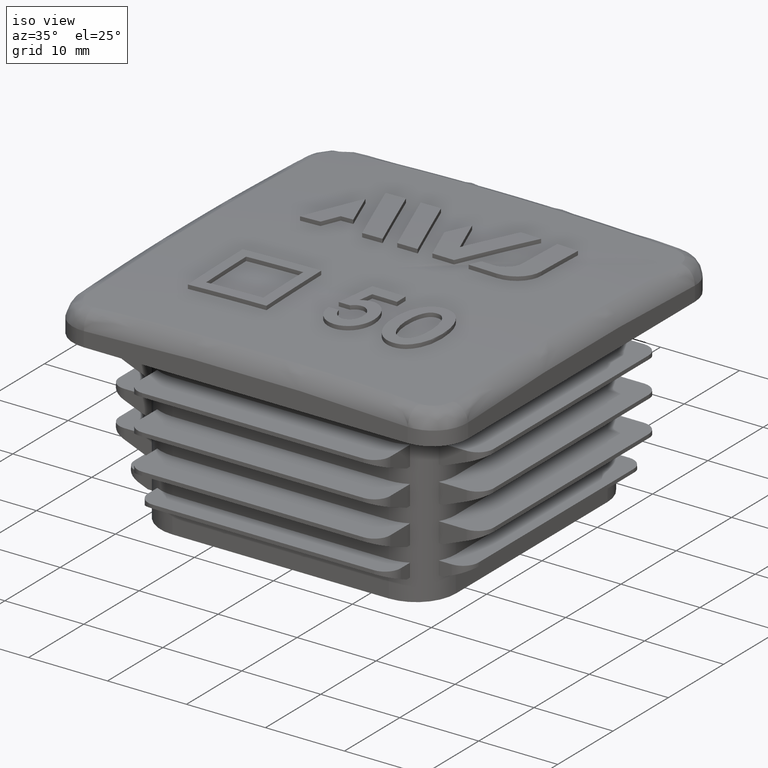
[diagram: clean part render]
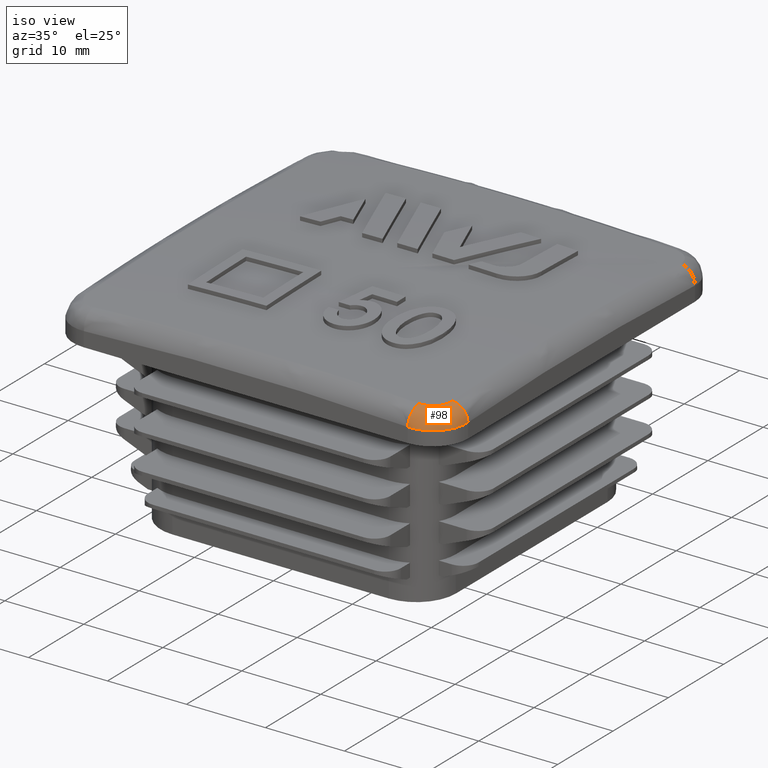
[diagram: same view with one face highlighted and labeled with its STEP entity id]
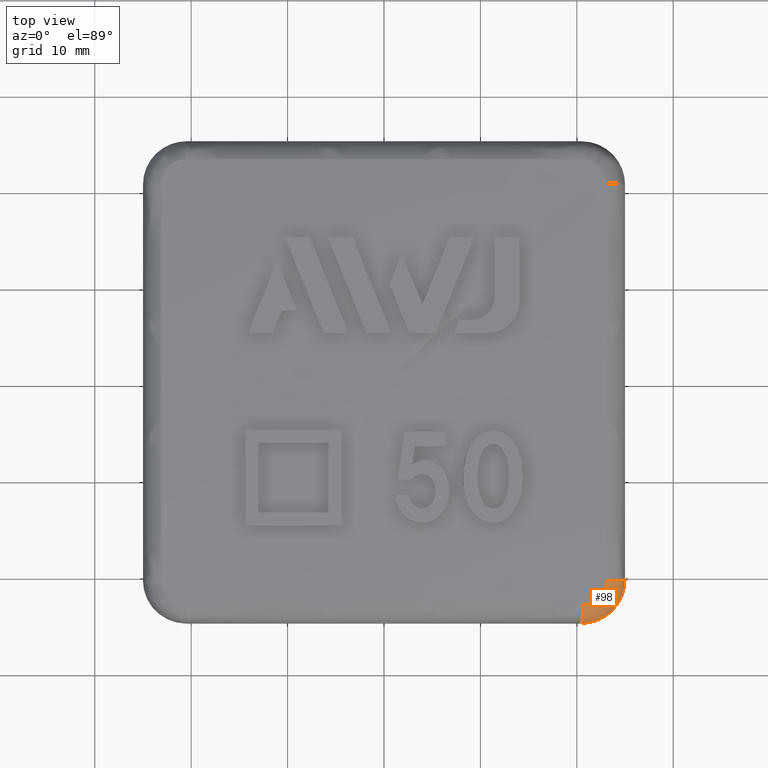
[diagram: same view with one face highlighted and labeled with its STEP entity id]
A machine part, iso view. The second image highlights one B-rep face of the part: STEP entity #98.
A second angle (top view) of the same face is appended — the face is thin or edge-on in the first view.
In plain terms, the highlighted face is a freeform B-spline surface patch.
Its self-contained STEP definition (entity closure, byte-faithful):
#98 = ADVANCED_FACE( '', ( #405 ), #406, .T. );
#405 = FACE_OUTER_BOUND( '', #1798, .T. );
#406 = ( B_SPLINE_SURFACE( 3, 2, ( ( #1800, #1801, #1802 ), ( #1803, #1804, #1805 ), ( #1806, #1807, #1808 ), ( #1809, #1810, #1811 ), ( #1812, #1813, #1814 ), ( #1815, #1816, #1817 ), ( #1818, #1819, #1820 ), ( #1821, #1822, #1823 ), ( #1824, #1825, #1826 ), ( #1827, #1828, #1829 ), ( #1830, #1831, #1832 ), ( #1833, #1834, #1835 ), ( #1836, #1837, #1838 ), ( #1839, #1840, #1841 ), ( #1842, #1843, #1844 ), ( #1845, #1846, #1847 ), ( #1848, #1849, #1850 ), ( #1851, #1852, #1853 ), ( #1854, #1855, #1856 ), ( #1857, #1858, #1859 ), ( #1860, #1861, #1862 ), ( #1863, #1864, #1865 ), ( #1866, #1867, #1868 ), ( #1869, #1870, #1871 ), ( #1872, #1873, #1874 ), ( #1875, #1876, #1877 ), ( #1878, #1879, #1880 ), ( #1881, #1882, #1883 ), ( #1884, #1885, #1886 ), ( #1887, #1888, #1889 ), ( #1890, #1891, #1892 ), ( #1893, #1894, #1895 ), ( #1896, #1897, #1898 ), ( #1899, #1900, #1901 ), ( #1902, #1903, #1904 ), ( #1905, #1906, #1907 ), ( #1908, #1909, #1910 ), ( #1911, #1912, #1913 ), ( #1914, #1915, #1916 ), ( #1917, #1918, #1919 ), ( #1920, #1921, #1922 ), ( #1923, #1924, #1925 ), ( #1926, #1927, #1928 ), ( #1929, #1930, #1931 ), ( #1932, #1933, #1934 ), ( #1935, #1936, #1937 ), ( #1938, #1939, #1940 ), ( #1941, #1942, #1943 ), ( #1944, #1945, #1946 ), ( #1947, #1948, #1949 ), ( #1950, #1951, #1952 ), ( #1953, #1954, #1955 ), ( #1956, #1957, #1958 ), ( #1959, #1960, #1961 ) ), .UNSPECIFIED., .F., .F., .F. )B_SPLINE_SURFACE_WITH_KNOTS( ( 4, 2, 2, 2, 2, 2, 2, 2, 2, 2, 2, 2, 2, 2, 2, 2, 2, 2, 2, 2, 2, 2, 2, 2, 2, 2, 4 ), ( 3, 3 ), ( -1.08420217248550E-019, 0.000244203709152109, 0.000488407418304219, 0.000732611127456328, 0.000793662054744356, 0.000824187518388369, 0.000854712982032383, 0.000976814836608438, 0.00122101854576055, 0.00146522225491266, 0.00158732410948871, 0.00164837503677674, 0.00170942596406477, 0.00195362967321688, 0.00219783338236899, 0.00244203709152109, 0.00250308801880912, 0.00253361348245314, 0.00256413894609715, 0.00268624080067320, 0.00293044450982531, 0.00317464821897742, 0.00329675007355348, 0.00335780100084150, 0.00341885192812953, 0.00366305563728164, 0.00390725934643375 ), ( 0.000000000000000, 1.00000000000000 ), .UNSPECIFIED. )RATIONAL_B_SPLINE_SURFACE( ( ( 1.00000000000000, 0.726860817058026, 1.00000000000000 ), ( 1.00000000000000, 0.727434369461533, 1.00000000000000 ), ( 1.00000000000000, 0.727974316013789, 1.00000000000000 ), ( 1.00000000000000, 0.728989454795228, 1.00000000000000 ), ( 1.00000000000000, 0.729464672655636, 1.00000000000000 ), ( 1.00000000000000, 0.730351103534360, 1.00000000000000 ), ( 1.00000000000000, 0.730762318758557, 1.00000000000000 ), ( 1.00000000000000, 0.731235596081552, 1.00000000000000 ), ( 1.00000000000000, 0.731328209703269, 1.00000000000000 ), ( 1.00000000000000, 0.731464038735480, 1.00000000000000 ), ( 1.00000000000000, 0.731508799785910, 1.00000000000000 ), ( 1.00000000000000, 0.731597285726913, 1.00000000000000 ), ( 1.00000000000000, 0.731641031309164, 1.00000000000000 ), ( 1.00000000000000, 0.731856583282710, 1.00000000000000 ), ( 1.00000000000000, 0.732019273401587, 1.00000000000000 ), ( 1.00000000000000, 0.732478726230433, 1.00000000000000 ), ( 1.00000000000000, 0.732746940931501, 1.00000000000000 ), ( 1.00000000000000, 0.733208808602876, 1.00000000000000 ), ( 1.00000000000000, 0.733402459754828, 1.00000000000000 ), ( 1.00000000000000, 0.733636555834625, 1.00000000000000 ), ( 1.00000000000000, 0.733705174024906, 1.00000000000000 ), ( 1.00000000000000, 0.733793762966022, 1.00000000000000 ), ( 1.00000000000000, 0.733820901744717, 1.00000000000000 ), ( 1.00000000000000, 0.733870346872464, 1.00000000000000 ), ( 1.00000000000000, 0.733892667460680, 1.00000000000000 ), ( 1.00000000000000, 0.733991562483478, 1.00000000000000 ), ( 1.00000000000000, 0.734030632817924, 1.00000000000000 ), ( 1.00000000000000, 0.734031210805133, 1.00000000000000 ), ( 1.00000000000000, 0.733992711843989, 1.00000000000000 ), ( 1.00000000000000, 0.733838304179725, 1.00000000000000 ), ( 1.00000000000000, 0.733722400147664, 1.00000000000000 ), ( 1.00000000000000, 0.733527789903732, 1.00000000000000 ), ( 1.00000000000000, 0.733486375372828, 1.00000000000000 ), ( 1.00000000000000, 0.733420470851471, 1.00000000000000 ), ( 1.00000000000000, 0.733397863905281, 1.00000000000000 ), ( 1.00000000000000, 0.733351512675516, 1.00000000000000 ), ( 1.00000000000000, 0.733327754387480, 1.00000000000000 ), ( 1.00000000000000, 0.733206065813756, 1.00000000000000 ), ( 1.00000000000000, 0.733099449844072, 1.00000000000000 ), ( 1.00000000000000, 0.732752287115492, 1.00000000000000 ), ( 1.00000000000000, 0.732484491539147, 1.00000000000000 ), ( 1.00000000000000, 0.731877081573989, 1.00000000000000 ), ( 1.00000000000000, 0.731537467254665, 1.00000000000000 ), ( 1.00000000000000, 0.730973251363804, 1.00000000000000 ), ( 1.00000000000000, 0.730776030486469, 1.00000000000000 ), ( 1.00000000000000, 0.730466202330993, 1.00000000000000 ), ( 1.00000000000000, 0.730360541906995, 1.00000000000000 ), ( 1.00000000000000, 0.730144707826296, 1.00000000000000 ), ( 1.00000000000000, 0.730034806917008, 1.00000000000000 ), ( 1.00000000000000, 0.729475443551060, 1.00000000000000 ), ( 1.00000000000000, 0.728996477297413, 1.00000000000000 ), ( 1.00000000000000, 0.727975958394807, 1.00000000000000 ), ( 1.00000000000000, 0.727434377511086, 1.00000000000000 ), ( 1.00000000000000, 0.726860817058027, 1.00000000000000 ) ) )BOUNDED_SURFACE(  )REPRESENTATION_ITEM( '' )GEOMETRIC_REPRESENTATION_ITEM(  )SURFACE(  ) );
#1798 = EDGE_LOOP( '', ( #3609, #3610, #3611, #3612 ) );
#1800 = CARTESIAN_POINT( '', ( 20.5000000000000, -25.0000000000000, 23.8526878253239 ) );
#1801 = CARTESIAN_POINT( '', ( 20.5955759626719, -25.0000000000000, 25.7399978061845 ) );
#1802 = CARTESIAN_POINT( '', ( 20.6009906558560, -23.1133065894970, 25.8469201348120 ) );
#1803 = CARTESIAN_POINT( '', ( 20.6484362324421, -25.0000000000000, 23.8485117064662 ) );
#1804 = CARTESIAN_POINT( '', ( 20.7407120778615, -24.9968473441277, 25.7328232002181 ) );
#1805 = CARTESIAN_POINT( '', ( 20.6838650787808, -23.1133106322547, 25.8427230308155 ) );
#1806 = CARTESIAN_POINT( '', ( 20.7956472244048, -24.9926743869857, 23.8445758698632 ) );
#1807 = CARTESIAN_POINT( '', ( 20.8843613139378, -24.9867218232492, 25.7260754389628 ) );
#1808 = CARTESIAN_POINT( '', ( 20.7660552806593, -23.1092245793063, 25.8387674157601 ) );
#1809 = CARTESIAN_POINT( '', ( 21.0876953065141, -24.9638710392973, 23.8371687546948 ) );
#1810 = CARTESIAN_POINT( '', ( 21.1688793442522, -24.9530673388047, 25.7133968645684 ) );
#1811 = CARTESIAN_POINT( '', ( 20.9291099679935, -23.0931509440975, 25.8313230788994 ) );
#1812 = CARTESIAN_POINT( '', ( 21.2325333424301, -24.9423919163660, 23.8336974881807 ) );
#1813 = CARTESIAN_POINT( '', ( 21.3097488878262, -24.9295368708019, 25.7074660886571 ) );
#1814 = CARTESIAN_POINT( '', ( 21.0099749885490, -23.0811625873893, 25.8278343688378 ) );
#1815 = CARTESIAN_POINT( '', ( 21.5198505240195, -24.8853569917423, 23.8272171286298 ) );
#1816 = CARTESIAN_POINT( '', ( 21.5888325781370, -24.8691905599888, 25.6964095577004 ) );
#1817 = CARTESIAN_POINT( '', ( 21.1703877101743, -23.0493264794255, 25.8213214446683 ) );
#1818 = CARTESIAN_POINT( '', ( 21.6623297700420, -24.8498017907573, 23.8242080155403 ) );
#1819 = CARTESIAN_POINT( '', ( 21.7270466337165, -24.8323752277192, 25.6912837808273 ) );
#1820 = CARTESIAN_POINT( '', ( 21.2499354676399, -23.0294790646756, 25.8182972103992 ) );
#1821 = CARTESIAN_POINT( '', ( 21.8389199768344, -24.7963536781449, 23.8207423440705 ) );
#1822 = CARTESIAN_POINT( '', ( 21.8981884764601, -24.7778747490842, 25.6853871714815 ) );
#1823 = CARTESIAN_POINT( '', ( 21.3485275463321, -22.9996425595425, 25.8148141235038 ) );
#1824 = CARTESIAN_POINT( '', ( 21.8741624012425, -24.7852128104024, 23.8200640298424 ) );
#1825 = CARTESIAN_POINT( '', ( 21.9323353910571, -24.7665495592878, 25.6842334405462 ) );
#1826 = CARTESIAN_POINT( '', ( 21.3682037339914, -22.9934233169792, 25.8141324006583 ) );
#1827 = CARTESIAN_POINT( '', ( 21.9269114235176, -24.7678175421744, 23.8190690234634 ) );
#1828 = CARTESIAN_POINT( '', ( 21.9834337098056, -24.7489175977928, 25.6825415577512 ) );
#1829 = CARTESIAN_POINT( '', ( 21.3976540087336, -22.9837125755365, 25.8131323942495 ) );
#1830 = CARTESIAN_POINT( '', ( 21.9444753260375, -24.7619051109292, 23.8187410992607 ) );
#1831 = CARTESIAN_POINT( '', ( 22.0004461383468, -24.7429329015006, 25.6819840498534 ) );
#1832 = CARTESIAN_POINT( '', ( 21.4074600979641, -22.9804120081446, 25.8128028221848 ) );
#1833 = CARTESIAN_POINT( '', ( 21.9795646943911, -24.7498508747022, 23.8180927849480 ) );
#1834 = CARTESIAN_POINT( '', ( 22.0344303013756, -24.7307474947597, 25.6808820047515 ) );
#1835 = CARTESIAN_POINT( '', ( 21.4270508111772, -22.9736828072266, 25.8121512500130 ) );
#1836 = CARTESIAN_POINT( '', ( 21.9970987574589, -24.7437058598887, 23.8177722431739 ) );
#1837 = CARTESIAN_POINT( '', ( 22.0514103588985, -24.7245435571757, 25.6803372099147 ) );
#1838 = CARTESIAN_POINT( '', ( 21.4368402352413, -22.9702523823272, 25.8118290974760 ) );
#1839 = CARTESIAN_POINT( '', ( 22.0844391310148, -24.7124883949431, 23.8161926706932 ) );
#1840 = CARTESIAN_POINT( '', ( 22.1359830318199, -24.6930657477157, 25.6776529421346 ) );
#1841 = CARTESIAN_POINT( '', ( 21.4856031326895, -22.9528253371266, 25.8102415874417 ) );
#1842 = CARTESIAN_POINT( '', ( 22.1534139552822, -24.6858875088964, 23.8150000359084 ) );
#1843 = CARTESIAN_POINT( '', ( 22.2027462177390, -24.6663655339828, 25.6756274604727 ) );
#1844 = CARTESIAN_POINT( '', ( 21.5241123384744, -22.9379753342459, 25.8090429595224 ) );
#1845 = CARTESIAN_POINT( '', ( 22.3577000281210, -24.6013020352257, 23.8116309483235 ) );
#1846 = CARTESIAN_POINT( '', ( 22.4004270700699, -24.5818022356436, 25.6699084034433 ) );
#1847 = CARTESIAN_POINT( '', ( 21.6381667857779, -22.8907549114640, 25.8056569418420 ) );
#1848 = CARTESIAN_POINT( '', ( 22.4903791267227, -24.5385459649203, 23.8096628188112 ) );
#1849 = CARTESIAN_POINT( '', ( 22.5287423707259, -24.5194876972147, 25.6665713312367 ) );
#1850 = CARTESIAN_POINT( '', ( 21.7122423445781, -22.8557203987695, 25.8036789222389 ) );
#1851 = CARTESIAN_POINT( '', ( 22.7488422885462, -24.4005346992577, 23.8062723724504 ) );
#1852 = CARTESIAN_POINT( '', ( 22.7786706969576, -24.3831807518106, 25.6608263436775 ) );
#1853 = CARTESIAN_POINT( '', ( 21.8565435589008, -22.7786726771714, 25.8002714384543 ) );
#1854 = CARTESIAN_POINT( '', ( 22.8746262174958, -24.3252792610047, 23.8048500660652 ) );
#1855 = CARTESIAN_POINT( '', ( 22.9002833816303, -24.3091881506966, 25.6584184549322 ) );
#1856 = CARTESIAN_POINT( '', ( 21.9267691393214, -22.7366593320900, 25.7988419848007 ) );
#1857 = CARTESIAN_POINT( '', ( 23.0580768627918, -24.2029239174499, 23.8031302950881 ) );
#1858 = CARTESIAN_POINT( '', ( 23.0777059182087, -24.1893213318795, 25.6555081244201 ) );
#1859 = CARTESIAN_POINT( '', ( 22.0291899391839, -22.6683506705803, 25.7971135717622 ) );
#1860 = CARTESIAN_POINT( '', ( 23.1183546641129, -24.1605573157115, 23.8026261077289 ) );
#1861 = CARTESIAN_POINT( '', ( 23.1360124898219, -24.1478833060960, 25.6546551478928 ) );
#1862 = CARTESIAN_POINT( '', ( 22.0628430853443, -22.6446981196357, 25.7966068507946 ) );
#1863 = CARTESIAN_POINT( '', ( 23.2074415311690, -24.0945967239002, 23.8019751161111 ) );
#1864 = CARTESIAN_POINT( '', ( 23.2222106024422, -24.0834616023435, 25.6535539918625 ) );
#1865 = CARTESIAN_POINT( '', ( 22.1125802758996, -22.6078733235249, 25.7959525878656 ) );
#1866 = CARTESIAN_POINT( '', ( 23.2369154098703, -24.0722078895045, 23.8017756753167 ) );
#1867 = CARTESIAN_POINT( '', ( 23.2507329153732, -24.0616100702863, 25.6532166724667 ) );
#1868 = CARTESIAN_POINT( '', ( 22.1290355268845, -22.5953739585215, 25.7957521448539 ) );
#1869 = CARTESIAN_POINT( '', ( 23.2954148409030, -24.0266175060366, 23.8014122906236 ) );
#1870 = CARTESIAN_POINT( '', ( 23.3073537804159, -24.0171425453265, 25.6526021161144 ) );
#1871 = CARTESIAN_POINT( '', ( 22.1616956999154, -22.5699214617880, 25.7953869341093 ) );
#1872 = CARTESIAN_POINT( '', ( 23.3244683989179, -24.0033916670655, 23.8012482420519 ) );
#1873 = CARTESIAN_POINT( '', ( 23.3354794634659, -23.9945029208157, 25.6523247022033 ) );
#1874 = CARTESIAN_POINT( '', ( 22.1779162580618, -22.5569547700631, 25.7952220611732 ) );
#1875 = CARTESIAN_POINT( '', ( 23.4678386450507, -23.8858429270345, 23.8005213727198 ) );
#1876 = CARTESIAN_POINT( '', ( 23.4743005697487, -23.8799880775484, 25.6510956025498 ) );
#1877 = CARTESIAN_POINT( '', ( 22.2579595828371, -22.4913287054746, 25.7944915392241 ) );
#1878 = CARTESIAN_POINT( '', ( 23.5770082428508, -23.7868769005778, 23.8002341407504 ) );
#1879 = CARTESIAN_POINT( '', ( 23.5801024165963, -23.7837871980364, 25.6506101000279 ) );
#1880 = CARTESIAN_POINT( '', ( 22.3189085235927, -22.4360768555936, 25.7942028638861 ) );
#1881 = CARTESIAN_POINT( '', ( 23.7846384408949, -23.5793976356943, 23.8002298919248 ) );
#1882 = CARTESIAN_POINT( '', ( 23.7816124728523, -23.5824191821138, 25.6506029173625 ) );
#1883 = CARTESIAN_POINT( '', ( 22.4348271421048, -22.3202425106294, 25.7941985937052 ) );
#1884 = CARTESIAN_POINT( '', ( 23.8830981490069, -23.4708836025405, 23.8005129226588 ) );
#1885 = CARTESIAN_POINT( '', ( 23.8773196549265, -23.4772514224570, 25.6510813205594 ) );
#1886 = CARTESIAN_POINT( '', ( 22.4897963202441, -22.2596595700793, 25.7944830467042 ) );
#1887 = CARTESIAN_POINT( '', ( 24.0693343852057, -23.2443313415559, 23.8016478094471 ) );
#1888 = CARTESIAN_POINT( '', ( 24.0587383772266, -23.2578827411199, 25.6530003442852 ) );
#1889 = CARTESIAN_POINT( '', ( 22.5937698138441, -22.1331759036956, 25.7956236364456 ) );
#1890 = CARTESIAN_POINT( '', ( 24.1571115267449, -23.1262936610830, 23.8024996328138 ) );
#1891 = CARTESIAN_POINT( '', ( 24.1444503962894, -23.1436825346981, 25.6544409046641 ) );
#1892 = CARTESIAN_POINT( '', ( 22.6427744731534, -22.0672754843673, 25.7964797403245 ) );
#1893 = CARTESIAN_POINT( '', ( 24.2599786633162, -22.9726358700763, 23.8039293394251 ) );
#1894 = CARTESIAN_POINT( '', ( 24.2452135540511, -22.9950721755445, 25.6568603216666 ) );
#1895 = CARTESIAN_POINT( '', ( 22.7002032525708, -21.9814880925141, 25.7979166313973 ) );
#1896 = CARTESIAN_POINT( '', ( 24.2802085756047, -22.9415980639873, 23.8042335695890 ) );
#1897 = CARTESIAN_POINT( '', ( 24.2650465588515, -22.9650563790824, 25.6573752167182 ) );
#1898 = CARTESIAN_POINT( '', ( 22.7114972099779, -21.9641596229280, 25.7982223903534 ) );
#1899 = CARTESIAN_POINT( '', ( 24.3100323477494, -22.8945767902468, 23.8047176575602 ) );
#1900 = CARTESIAN_POINT( '', ( 24.2943117522572, -22.9195858121888, 25.6581946393092 ) );
#1901 = CARTESIAN_POINT( '', ( 22.7281471946777, -21.9379075312517, 25.7987089109295 ) );
#1902 = CARTESIAN_POINT( '', ( 24.3198897056533, -22.8788204847154, 23.8048837050700 ) );
#1903 = CARTESIAN_POINT( '', ( 24.3039890022464, -22.9043495271318, 25.6584757303048 ) );
#1904 = CARTESIAN_POINT( '', ( 22.7336503448097, -21.9291107443714, 25.7988757928489 ) );
#1905 = CARTESIAN_POINT( '', ( 24.3393760877400, -22.8472399789430, 23.8052241375631 ) );
#1906 = CARTESIAN_POINT( '', ( 24.3231285192325, -22.8738118694884, 25.6590520719587 ) );
#1907 = CARTESIAN_POINT( '', ( 22.7445291602750, -21.9114792586266, 25.7992179360568 ) );
#1908 = CARTESIAN_POINT( '', ( 24.3490117245948, -22.8314055126760, 23.8053986254214 ) );
#1909 = CARTESIAN_POINT( '', ( 24.3325972708404, -22.8585005689019, 25.6593474967326 ) );
#1910 = CARTESIAN_POINT( '', ( 22.7499085168727, -21.9026388279397, 25.7993933007400 ) );
#1911 = CARTESIAN_POINT( '', ( 24.3966552782131, -22.7520134041425, 23.8062922974466 ) );
#1912 = CARTESIAN_POINT( '', ( 24.3794391451168, -22.7817323969413, 25.6608606953825 ) );
#1913 = CARTESIAN_POINT( '', ( 22.7765068007886, -21.8583139576539, 25.8002914635749 ) );
#1914 = CARTESIAN_POINT( '', ( 24.4330603468972, -22.6877968616116, 23.8070751388698 ) );
#1915 = CARTESIAN_POINT( '', ( 24.4153076414779, -22.7196409261488, 25.6621866212911 ) );
#1916 = CARTESIAN_POINT( '', ( 22.7968308072766, -21.8224616044701, 25.8010782388784 ) );
#1917 = CARTESIAN_POINT( '', ( 24.5372411955906, -22.4930777026190, 23.8096235870432 ) );
#1918 = CARTESIAN_POINT( '', ( 24.5181934439612, -22.5313521323964, 25.6665048174060 ) );
#1919 = CARTESIAN_POINT( '', ( 22.8549919909297, -21.7137489758505, 25.8036394933236 ) );
#1920 = CARTESIAN_POINT( '', ( 24.5999944982792, -22.3605104398276, 23.8115886470544 ) );
#1921 = CARTESIAN_POINT( '', ( 24.5805028450873, -22.4031452525174, 25.6698366682319 ) );
#1922 = CARTESIAN_POINT( '', ( 22.8900249599929, -21.6397358561689, 25.8056144280091 ) );
#1923 = CARTESIAN_POINT( '', ( 24.7123045515964, -22.0899510518338, 23.8160427283967 ) );
#1924 = CARTESIAN_POINT( '', ( 24.6927680591572, -22.1413365951546, 25.6773973708853 ) );
#1925 = CARTESIAN_POINT( '', ( 22.9527228398155, -21.4886805267410, 25.8100908916684 ) );
#1926 = CARTESIAN_POINT( '', ( 24.7618612376606, -21.9519589003466, 23.8185317525063 ) );
#1927 = CARTESIAN_POINT( '', ( 24.7427238064480, -22.0077350028672, 25.6816262171839 ) );
#1928 = CARTESIAN_POINT( '', ( 22.9803877144731, -21.4116383021399, 25.8125924234323 ) );
#1929 = CARTESIAN_POINT( '', ( 24.8261656810903, -21.7408472767022, 23.8226634532929 ) );
#1930 = CARTESIAN_POINT( '', ( 24.8082642321642, -21.8031438336419, 25.6886557096138 ) );
#1931 = CARTESIAN_POINT( '', ( 23.0162846168860, -21.2937725796045, 25.8167448865423 ) );
#1932 = CARTESIAN_POINT( '', ( 24.8459257725674, -21.6697882867673, 23.8241071648382 ) );
#1933 = CARTESIAN_POINT( '', ( 24.8285425742341, -21.7342474089022, 25.6911134546559 ) );
#1934 = CARTESIAN_POINT( '', ( 23.0273151988285, -21.2540995958858, 25.8181958529141 ) );
#1935 = CARTESIAN_POINT( '', ( 24.8730091339428, -21.5621487553936, 23.8263742098586 ) );
#1936 = CARTESIAN_POINT( '', ( 24.8565635452071, -21.6298238955318, 25.6949756360952 ) );
#1937 = CARTESIAN_POINT( '', ( 23.0424335362647, -21.1940032461990, 25.8204742901246 ) );
#1938 = CARTESIAN_POINT( '', ( 24.8816143809512, -21.5260767543693, 23.8271471813466 ) );
#1939 = CARTESIAN_POINT( '', ( 24.8655082086288, -21.5948197535446, 25.6962929339001 ) );
#1940 = CARTESIAN_POINT( '', ( 23.0472370635491, -21.1738638357267, 25.8212511458913 ) );
#1941 = CARTESIAN_POINT( '', ( 24.8979460815286, -21.4536500160870, 23.8287257915444 ) );
#1942 = CARTESIAN_POINT( '', ( 24.8825715882420, -21.5245153766293, 25.6989842033672 ) );
#1943 = CARTESIAN_POINT( '', ( 23.0563534604947, -21.1334271389742, 25.8228376888012 ) );
#1944 = CARTESIAN_POINT( '', ( 24.9056524822449, -21.4173862161642, 23.8295294354886 ) );
#1945 = CARTESIAN_POINT( '', ( 24.8906693071454, -21.4893034218838, 25.7003547739718 ) );
#1946 = CARTESIAN_POINT( '', ( 23.0606551360164, -21.1131806239495, 25.8236453711589 ) );
#1947 = CARTESIAN_POINT( '', ( 24.9419042836308, -21.2358169322349, 23.8336188111218 ) );
#1948 = CARTESIAN_POINT( '', ( 24.9290027867374, -21.3129424793521, 25.7073316667289 ) );
#1949 = CARTESIAN_POINT( '', ( 23.0808904203331, -21.0118082608968, 25.8277552964161 ) );
#1950 = CARTESIAN_POINT( '', ( 24.9636257177537, -21.0897624233184, 23.8371174921964 ) );
#1951 = CARTESIAN_POINT( '', ( 24.9527897181967, -21.1708918170504, 25.7133091827765 ) );
#1952 = CARTESIAN_POINT( '', ( 23.0930140312129, -20.9302640683832, 25.8312715588050 ) );
#1953 = CARTESIAN_POINT( '', ( 24.9926734634253, -20.7960733273782, 23.8445639075339 ) );
#1954 = CARTESIAN_POINT( '', ( 24.9867118017218, -20.8847777653406, 25.7260549009258 ) );
#1955 = CARTESIAN_POINT( '', ( 23.1092240756302, -20.7662931810863, 25.8387553933140 ) );
#1956 = CARTESIAN_POINT( '', ( 25.0000000000000, -20.6484380182274, 23.8485116561817 ) );
#1957 = CARTESIAN_POINT( '', ( 24.9968473062460, -20.7407138820724, 25.7328231109598 ) );
#1958 = CARTESIAN_POINT( '', ( 23.1133106330667, -20.6838660760357, 25.8427229802671 ) );
#1959 = CARTESIAN_POINT( '', ( 25.0000000000000, -20.5000000000000, 23.8526878253239 ) );
#1960 = CARTESIAN_POINT( '', ( 25.0000000000000, -20.5955759626719, 25.7399978061845 ) );
#1961 = CARTESIAN_POINT( '', ( 23.1133065894970, -20.6009906558560, 25.8469201348120 ) );
#3609 = ORIENTED_EDGE( '', *, *, #5738, .T. );
#3610 = ORIENTED_EDGE( '', *, *, #5673, .F. );
#3611 = ORIENTED_EDGE( '', *, *, #5734, .F. );
#3612 = ORIENTED_EDGE( '', *, *, #5739, .F. );
#5673 = EDGE_CURVE( '', #6442, #6444, #6445, .T. );
#5734 = EDGE_CURVE( '', #6555, #6442, #6556, .T. );
#5738 = EDGE_CURVE( '', #6561, #6444, #6562, .T. );
#5739 = EDGE_CURVE( '', #6561, #6555, #6563, .T. );
#6442 = VERTEX_POINT( '', #8200 );
#6444 = VERTEX_POINT( '', #8218 );
#6445 = B_SPLINE_CURVE_WITH_KNOTS( '', 3, ( #8219, #8220, #8221, #8222, #8223, #8224, #8225, #8226, #8227, #8228, #8229, #8230, #8231, #8232, #8233, #8234, #8235, #8236, #8237, #8238, #8239, #8240, #8241, #8242, #8243, #8244, #8245, #8246, #8247, #8248, #8249, #8250, #8251, #8252, #8253, #8254, #8255, #8256, #8257, #8258, #8259, #8260, #8261 ), .UNSPECIFIED., .F., .F., ( 4, 1, 1, 2, 1, 2, 2, 2, 1, 2, 1, 2, 2, 1, 1, 2, 2, 2, 1, 2, 1, 2, 2, 2, 1, 1, 4 ), ( 0.000000000000000, 0.000245410803414645, 0.000490821606829291, 0.000736232410243936, 0.000797585111097600, 0.000828261461524427, 0.000858937811951254, 0.000981643213658564, 0.00122705401707317, 0.00147246482048779, 0.00159517022219509, 0.00165652292304874, 0.00171787562390240, 0.00196328642731701, 0.00220869723073162, 0.00245410803414624, 0.00251546073499989, 0.00254613708542672, 0.00257681343585355, 0.00269951883756085, 0.00294492964097546, 0.00319034044439006, 0.00331304584609737, 0.00337439854695101, 0.00343575124780466, 0.00368116205121926, 0.00392657285463386 ), .UNSPECIFIED. );
#6555 = VERTEX_POINT( '', #8868 );
#6556 = CIRCLE( '', #8869, 2.00000000000000 );
#6561 = VERTEX_POINT( '', #8938 );
#6562 = CIRCLE( '', #8939, 2.00000000000000 );
#6563 = B_SPLINE_CURVE_WITH_KNOTS( '', 3, ( #8940, #8941, #8942, #8943, #8944, #8945, #8946, #8947, #8948, #8949, #8950, #8951, #8952, #8953, #8954, #8955, #8956, #8957, #8958, #8959, #8960, #8961, #8962, #8963, #8964, #8965, #8966, #8967, #8968, #8969, #8970, #8971, #8972, #8973, #8974, #8975, #8976, #8977, #8978, #8979, #8980, #8981, #8982, #8983, #8984, #8985, #8986, #8987, #8988 ), .UNSPECIFIED., .F., .F., ( 4, 1, 2, 2, 2, 1, 2, 1, 2, 2, 2, 2, 1, 1, 2, 2, 2, 2, 1, 2, 1, 2, 2, 2, 1, 2, 1, 2, 4 ), ( 0.000000000000000, 0.000442954297359145, 0.000885908594718291, 0.000996647169058074, 0.00105201645622797, 0.00110738574339786, 0.00132886289207742, 0.00177181718943655, 0.00221477148679568, 0.00243624863547524, 0.00249161792264513, 0.00254698720981502, 0.00265772578415480, 0.00310068008151396, 0.00354363437887311, 0.00398658867623226, 0.00404195796340215, 0.00409732725057204, 0.00420806582491183, 0.00442954297359141, 0.00487249727095055, 0.00531545156830970, 0.00553692871698926, 0.00559229800415916, 0.00564766729132905, 0.00575840586566885, 0.00620136016302806, 0.00664431446038726, 0.00708726875774647 ), .UNSPECIFIED. );
#8200 = CARTESIAN_POINT( '', ( 20.6009906558560, -23.1133065894970, 25.8469201348120 ) );
#8218 = CARTESIAN_POINT( '', ( 23.1133065894970, -20.6009906558560, 25.8469201348119 ) );
#8219 = CARTESIAN_POINT( '', ( 20.6009906558560, -23.1133065894970, 25.8469201348120 ) );
#8220 = CARTESIAN_POINT( '', ( 20.6838635588458, -23.1133106343912, 25.8427231076657 ) );
#8221 = CARTESIAN_POINT( '', ( 20.8482391341204, -23.1051397274058, 25.8348120617872 ) );
#8222 = CARTESIAN_POINT( '', ( 21.0908307520967, -23.0691756333871, 25.8243460568793 ) );
#8223 = CARTESIAN_POINT( '', ( 21.2499253149223, -23.0294817671881, 25.8182975878132 ) );
#8224 = CARTESIAN_POINT( '', ( 21.3485172007621, -22.9996457828389, 25.8148144843123 ) );
#8225 = CARTESIAN_POINT( '', ( 21.3780314544345, -22.9903170678872, 25.8137918939186 ) );
#8226 = CARTESIAN_POINT( '', ( 21.4074497422764, -22.9804155173618, 25.8128031690310 ) );
#8227 = CARTESIAN_POINT( '', ( 21.4270404773835, -22.9736864045749, 25.8121515912859 ) );
#8228 = CARTESIAN_POINT( '', ( 21.4368299260325, -22.9702560190073, 25.8118294355119 ) );
#8229 = CARTESIAN_POINT( '', ( 21.4855929870515, -22.9528291535188, 25.8102419080963 ) );
#8230 = CARTESIAN_POINT( '', ( 21.5241023617447, -22.9379792776215, 25.8090432651850 ) );
#8231 = CARTESIAN_POINT( '', ( 21.6381574176898, -22.8907591642451, 25.8056572010107 ) );
#8232 = CARTESIAN_POINT( '', ( 21.7863096992641, -22.8206905082791, 25.8017010842947 ) );
#8233 = CARTESIAN_POINT( '', ( 21.9267624286140, -22.7366635322643, 25.7988421120081 ) );
#8234 = CARTESIAN_POINT( '', ( 22.0291845622910, -22.6683543943716, 25.7971136555215 ) );
#8235 = CARTESIAN_POINT( '', ( 22.0796649869159, -22.6328752623903, 25.7963535538187 ) );
#8236 = CARTESIAN_POINT( '', ( 22.1290316158688, -22.5953769577134, 25.7957521910572 ) );
#8237 = CARTESIAN_POINT( '', ( 22.1616923075226, -22.5699241542262, 25.7953869695741 ) );
#8238 = CARTESIAN_POINT( '', ( 22.1779131389742, -22.5569572883485, 25.7952220916141 ) );
#8239 = CARTESIAN_POINT( '', ( 22.2579577885086, -22.4913303325855, 25.7944915477036 ) );
#8240 = CARTESIAN_POINT( '', ( 22.3798580226131, -22.3808255496297, 25.7939141327490 ) );
#8241 = CARTESIAN_POINT( '', ( 22.5447673204735, -22.1990738556655, 25.7947675478309 ) );
#8242 = CARTESIAN_POINT( '', ( 22.6427776454542, -22.0672711246609, 25.7964798004954 ) );
#8243 = CARTESIAN_POINT( '', ( 22.7002069394798, -21.9814824901998, 25.7979167284465 ) );
#8244 = CARTESIAN_POINT( '', ( 22.7115009934044, -21.9641537684915, 25.7982224952896 ) );
#8245 = CARTESIAN_POINT( '', ( 22.7281511150111, -21.9379012945660, 25.7987090282936 ) );
#8246 = CARTESIAN_POINT( '', ( 22.7336543054161, -21.9291043853338, 25.7988759143716 ) );
#8247 = CARTESIAN_POINT( '', ( 22.7445331901844, -21.9114726672517, 25.7992180658413 ) );
#8248 = CARTESIAN_POINT( '', ( 22.7714299854647, -21.8672698877573, 25.8000949203313 ) );
#8249 = CARTESIAN_POINT( '', ( 22.7968350708471, -21.8224539506450, 25.8010784106497 ) );
#8250 = CARTESIAN_POINT( '', ( 22.8549963099021, -21.7137402719395, 25.8036397154929 ) );
#8251 = CARTESIAN_POINT( '', ( 22.9250620240798, -21.5657130233657, 25.8075896471157 ) );
#8252 = CARTESIAN_POINT( '', ( 22.9803910913289, -21.4116283638828, 25.8125927558409 ) );
#8253 = CARTESIAN_POINT( '', ( 23.0162874132253, -21.2937628231121, 25.8167452391301 ) );
#8254 = CARTESIAN_POINT( '', ( 23.0273177888229, -21.2540899561342, 25.8181962100404 ) );
#8255 = CARTESIAN_POINT( '', ( 23.0424358118716, -21.1939938725813, 25.8204746496820 ) );
#8256 = CARTESIAN_POINT( '', ( 23.0472392368436, -21.1738545483122, 25.8212515062620 ) );
#8257 = CARTESIAN_POINT( '', ( 23.0563554109959, -21.1334181347177, 25.8228380461102 ) );
#8258 = CARTESIAN_POINT( '', ( 23.0778609082522, -21.0321861215331, 25.8268765751021 ) );
#8259 = CARTESIAN_POINT( '', ( 23.1051379413473, -20.8487141192839, 25.8347880972690 ) );
#8260 = CARTESIAN_POINT( '', ( 23.1133106344292, -20.6838643389248, 25.8427230681593 ) );
#8261 = CARTESIAN_POINT( '', ( 23.1133065894970, -20.6009906558560, 25.8469201348120 ) );
#8868 = CARTESIAN_POINT( '', ( 20.5000000000000, -25.0000000000000, 23.8526878253238 ) );
#8869 = AXIS2_PLACEMENT_3D( '', #10845, #10846, #10847 );
#8938 = CARTESIAN_POINT( '', ( 25.0000000000000, -20.5000000000000, 23.8526878253238 ) );
#8939 = AXIS2_PLACEMENT_3D( '', #10851, #10852, #10853 );
#8940 = CARTESIAN_POINT( '', ( 25.0000000000000, -20.5000000000000, 23.8526878253238 ) );
#8941 = CARTESIAN_POINT( '', ( 25.0000000000000, -20.6485207728439, 23.8485093278900 ) );
#8942 = CARTESIAN_POINT( '', ( 24.9853310627443, -20.9439265958905, 23.8406104728752 ) );
#8943 = CARTESIAN_POINT( '', ( 24.9418551167326, -21.2361201787005, 23.8336116613763 ) );
#8944 = CARTESIAN_POINT( '', ( 24.9055817138584, -21.4177263343380, 23.8295218556472 ) );
#8945 = CARTESIAN_POINT( '', ( 24.8978709462711, -21.4539967077946, 23.8287181495581 ) );
#8946 = CARTESIAN_POINT( '', ( 24.8856156341827, -21.5083254206091, 23.8275341320654 ) );
#8947 = CARTESIAN_POINT( '', ( 24.8814190399243, -21.5264067345215, 23.8271433897695 ) );
#8948 = CARTESIAN_POINT( '', ( 24.8728146784354, -21.5624666470728, 23.8263707338077 ) );
#8949 = CARTESIAN_POINT( '', ( 24.8507675760014, -21.6523952195560, 23.8244603968221 ) );
#8950 = CARTESIAN_POINT( '', ( 24.8260573678380, -21.7412251272563, 23.8226558676005 ) );
#8951 = CARTESIAN_POINT( '', ( 24.7617300909477, -21.9523447584309, 23.8185245837972 ) );
#8952 = CARTESIAN_POINT( '', ( 24.6625899400031, -22.2283216201105, 23.8135474984541 ) );
#8953 = CARTESIAN_POINT( '', ( 24.5370729323205, -22.4934167108894, 23.8096187810811 ) );
#8954 = CARTESIAN_POINT( '', ( 24.4328939678329, -22.6880955300936, 23.8070714151610 ) );
#8955 = CARTESIAN_POINT( '', ( 24.3964911455786, -22.7522968297346, 23.8062889395935 ) );
#8956 = CARTESIAN_POINT( '', ( 24.3488528478374, -22.8316677554370, 23.8053957158161 ) );
#8957 = CARTESIAN_POINT( '', ( 24.3392183846726, -22.8474978787696, 23.8052213171802 ) );
#8958 = CARTESIAN_POINT( '', ( 24.3197346066569, -22.8790694884226, 23.8048810617703 ) );
#8959 = CARTESIAN_POINT( '', ( 24.3098787593302, -22.8948211095737, 23.8047151035942 ) );
#8960 = CARTESIAN_POINT( '', ( 24.2800601483092, -22.9418276978091, 23.8042312837386 ) );
#8961 = CARTESIAN_POINT( '', ( 24.1789258109273, -23.0969653829049, 23.8027111491555 ) );
#8962 = CARTESIAN_POINT( '', ( 23.9814719504856, -23.3624675834233, 23.8007956125753 ) );
#8963 = CARTESIAN_POINT( '', ( 23.7846077107031, -23.5794282678225, 23.8002298947123 ) );
#8964 = CARTESIAN_POINT( '', ( 23.5770412972747, -23.7868439459063, 23.8002341379152 ) );
#8965 = CARTESIAN_POINT( '', ( 23.4679078907969, -23.8857800729371, 23.8005211928674 ) );
#8966 = CARTESIAN_POINT( '', ( 23.3389208439811, -23.9915429169405, 23.8011749486420 ) );
#8967 = CARTESIAN_POINT( '', ( 23.3245024559560, -24.0032172022317, 23.8012521943971 ) );
#8968 = CARTESIAN_POINT( '', ( 23.2954916405885, -24.0264105514125, 23.8014159542843 ) );
#8969 = CARTESIAN_POINT( '', ( 23.2809260867457, -24.0379080934202, 23.8015023177700 ) );
#8970 = CARTESIAN_POINT( '', ( 23.2370665443071, -24.0720919699467, 23.8017746840522 ) );
#8971 = CARTESIAN_POINT( '', ( 23.1486741287155, -24.1392418415227, 23.8023726519382 ) );
#8972 = CARTESIAN_POINT( '', ( 23.0582848376403, -24.2027798808031, 23.8031284952598 ) );
#8973 = CARTESIAN_POINT( '', ( 22.8748860083776, -24.3251166089329, 23.8048473317709 ) );
#8974 = CARTESIAN_POINT( '', ( 22.6233790877842, -24.4756160043411, 23.8076905522583 ) );
#8975 = CARTESIAN_POINT( '', ( 22.3580625736617, -24.6011374142466, 23.8116253774471 ) );
#8976 = CARTESIAN_POINT( '', ( 22.1537990406396, -24.6857352863892, 23.8149934818115 ) );
#8977 = CARTESIAN_POINT( '', ( 22.0848302728991, -24.7123412146523, 23.8161858043620 ) );
#8978 = CARTESIAN_POINT( '', ( 21.9974954701261, -24.7435658838837, 23.8177650173668 ) );
#8979 = CARTESIAN_POINT( '', ( 21.9799621964609, -24.7497124668176, 23.8180854928141 ) );
#8980 = CARTESIAN_POINT( '', ( 21.9448733695693, -24.7617701837954, 23.8187336939919 ) );
#8981 = CARTESIAN_POINT( '', ( 21.8921819079216, -24.7795128456046, 23.8197173086238 ) );
#8982 = CARTESIAN_POINT( '', ( 21.8393168382496, -24.7962300038467, 23.8207346555092 ) );
#8983 = CARTESIAN_POINT( '', ( 21.6627181076853, -24.8496983836581, 23.8241999968282 ) );
#8984 = CARTESIAN_POINT( '', ( 21.3777221384346, -24.9208465142967, 23.8302182161162 ) );
#8985 = CARTESIAN_POINT( '', ( 21.0879595287214, -24.9638381217120, 23.8371622461119 ) );
#8986 = CARTESIAN_POINT( '', ( 20.7957991685450, -24.9926662502518, 23.8445718236367 ) );
#8987 = CARTESIAN_POINT( '', ( 20.6485203544585, -25.0000000000000, 23.8485093396609 ) );
#8988 = CARTESIAN_POINT( '', ( 20.5000000000000, -25.0000000000000, 23.8526878253238 ) );
#10845 = CARTESIAN_POINT( '', ( 20.5000000000000, -23.0000000000000, 23.8526878253238 ) );
#10846 = DIRECTION( '', ( -0.998720186913772, 3.12560722086872E-016, 0.0505765583143017 ) );
#10847 = DIRECTION( '', ( 0.0505765583143017, 0.000000000000000, 0.998720186913772 ) );
#10851 = CARTESIAN_POINT( '', ( 23.0000000000000, -20.5000000000000, 23.8526878253238 ) );
#10852 = DIRECTION( '', ( 0.000000000000000, -0.998720186913772, -0.0505765583142999 ) );
#10853 = DIRECTION( '', ( 0.000000000000000, 0.0505765583142999, -0.998720186913772 ) );